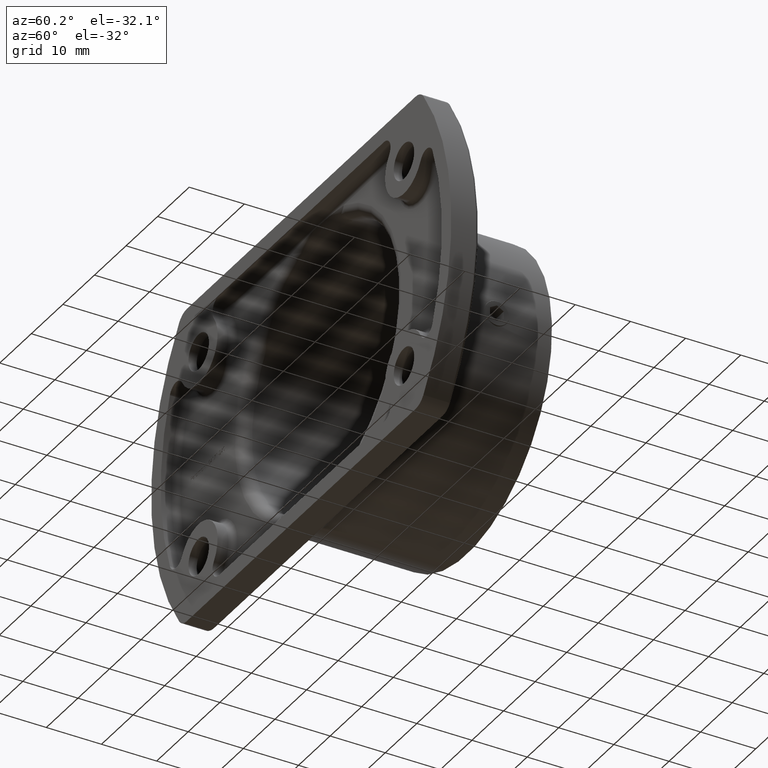
[diagram: clean part render]
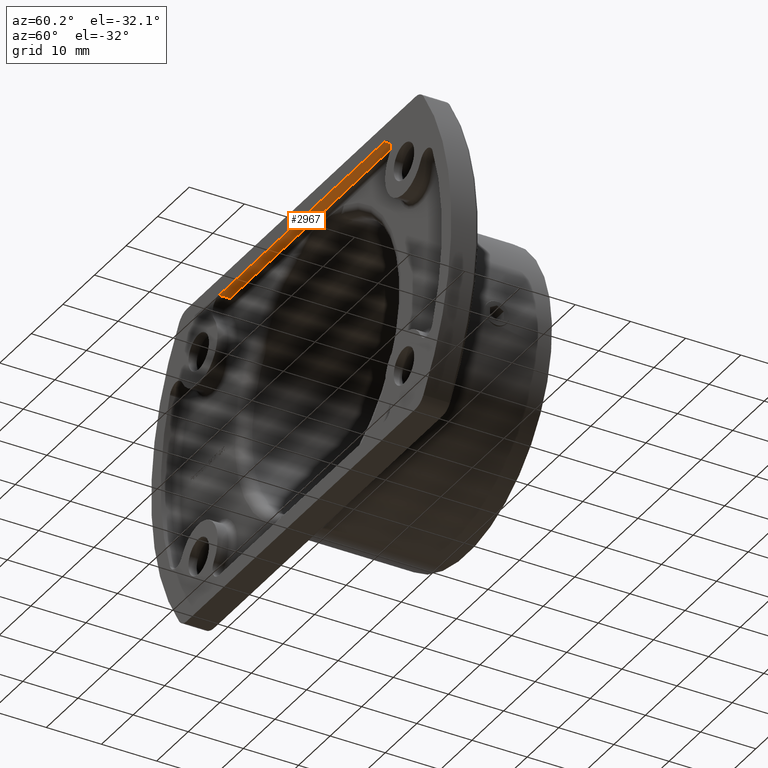
[diagram: same view with one face highlighted and labeled with its STEP entity id]
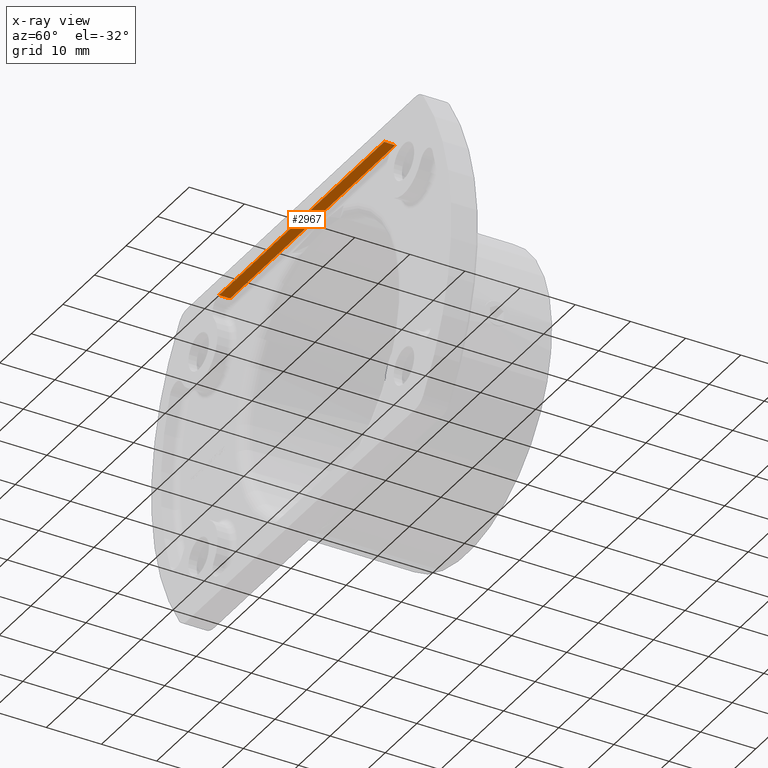
[diagram: x-ray of the same camera — body ghosted, the highlighted face saturated]
A machine part, auxiliary view. The second image highlights one B-rep face of the part: STEP entity #2967.
The next image is the same camera in x-ray: the body ghosted, the highlighted face saturated — about 0% of this face is hidden behind the body in this view.
In plain terms, the highlighted planar face has unit normal (0, 0, 1).
Its self-contained STEP definition (entity closure, byte-faithful):
#16 = DIRECTION ( 'NONE',  ( 1.000000000000000000, -0.000000000000000000, -0.000000000000000000 ) ) ;
#379 = CARTESIAN_POINT ( 'NONE',  ( -26.04570025872163797, 3.000000000000000000, 26.00000000000000355 ) ) ;
#777 = VERTEX_POINT ( 'NONE', #7634 ) ;
#827 = LINE ( 'NONE', #6056, #4220 ) ;
#910 = ORIENTED_EDGE ( 'NONE', *, *, #12904, .T. ) ;
#1242 = ORIENTED_EDGE ( 'NONE', *, *, #8294, .T. ) ;
#1286 = VECTOR ( 'NONE', #7691, 1000.000000000000000 ) ;
#1723 = VERTEX_POINT ( 'NONE', #11915 ) ;
#2765 = ORIENTED_EDGE ( 'NONE', *, *, #4995, .F. ) ;
#2967 = ADVANCED_FACE ( 'NONE', ( #9948 ), #10315, .F. ) ;
#3832 = VERTEX_POINT ( 'NONE', #4564 ) ;
#4105 = DIRECTION ( 'NONE',  ( -0.000000000000000000, -1.000000000000000000, -0.000000000000000000 ) ) ;
#4188 = DIRECTION ( 'NONE',  ( 1.000000000000000000, 0.000000000000000000, -0.000000000000000000 ) ) ;
#4220 = VECTOR ( 'NONE', #6972, 1000.000000000000000 ) ;
#4564 = CARTESIAN_POINT ( 'NONE',  ( -26.04570025872163797, 2.000000000000000000, 26.00000000000000355 ) ) ;
#4995 = EDGE_CURVE ( 'NONE', #3832, #9664, #9753, .T. ) ;
#5014 = CARTESIAN_POINT ( 'NONE',  ( 26.25500200160159991, 3.000000000000000000, 26.00000000000000711 ) ) ;
#5437 = EDGE_LOOP ( 'NONE', ( #2765, #9342, #1242, #910 ) ) ;
#5903 = CARTESIAN_POINT ( 'NONE',  ( -26.04570025872163797, 0.000000000000000000, 26.00000000000000355 ) ) ;
#6056 = CARTESIAN_POINT ( 'NONE',  ( 26.25500200160159991, -0.000000000000000000, 26.00000000000000355 ) ) ;
#6785 = VECTOR ( 'NONE', #4105, 1000.000000000000000 ) ;
#6972 = DIRECTION ( 'NONE',  ( -1.000000000000000000, 0.000000000000000000, 0.000000000000000000 ) ) ;
#7634 = CARTESIAN_POINT ( 'NONE',  ( 26.25500200160159991, 2.000000000000000000, 26.00000000000000711 ) ) ;
#7691 = DIRECTION ( 'NONE',  ( -0.000000000000000000, -1.000000000000000000, -0.000000000000000000 ) ) ;
#8267 = LINE ( 'NONE', #9191, #9557 ) ;
#8294 = EDGE_CURVE ( 'NONE', #777, #1723, #10236, .T. ) ;
#8357 = CARTESIAN_POINT ( 'NONE',  ( 26.25500200160159991, 3.000000000000000000, 26.00000000000000355 ) ) ;
#8499 = AXIS2_PLACEMENT_3D ( 'NONE', #8357, #9403, #4188 ) ;
#9191 = CARTESIAN_POINT ( 'NONE',  ( 26.25500200160159991, 2.000000000000000000, 26.00000000000000355 ) ) ;
#9342 = ORIENTED_EDGE ( 'NONE', *, *, #10473, .T. ) ;
#9403 = DIRECTION ( 'NONE',  ( 0.000000000000000000, -0.000000000000000000, 1.000000000000000000 ) ) ;
#9557 = VECTOR ( 'NONE', #16, 1000.000000000000000 ) ;
#9664 = VERTEX_POINT ( 'NONE', #5903 ) ;
#9753 = LINE ( 'NONE', #379, #1286 ) ;
#9948 = FACE_OUTER_BOUND ( 'NONE', #5437, .T. ) ;
#10236 = LINE ( 'NONE', #5014, #6785 ) ;
#10315 = PLANE ( 'NONE',  #8499 ) ;
#10473 = EDGE_CURVE ( 'NONE', #3832, #777, #8267, .T. ) ;
#11915 = CARTESIAN_POINT ( 'NONE',  ( 26.25500200160159991, 0.000000000000000000, 26.00000000000000711 ) ) ;
#12904 = EDGE_CURVE ( 'NONE', #1723, #9664, #827, .T. ) ;